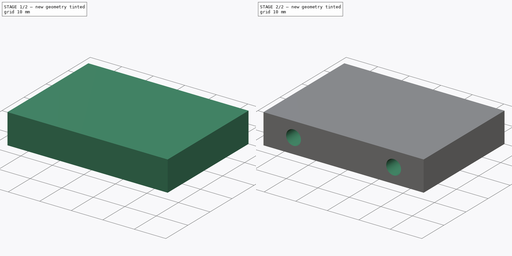
[diagram: build sequence overview — one tinted view per stage of 2, left to right]
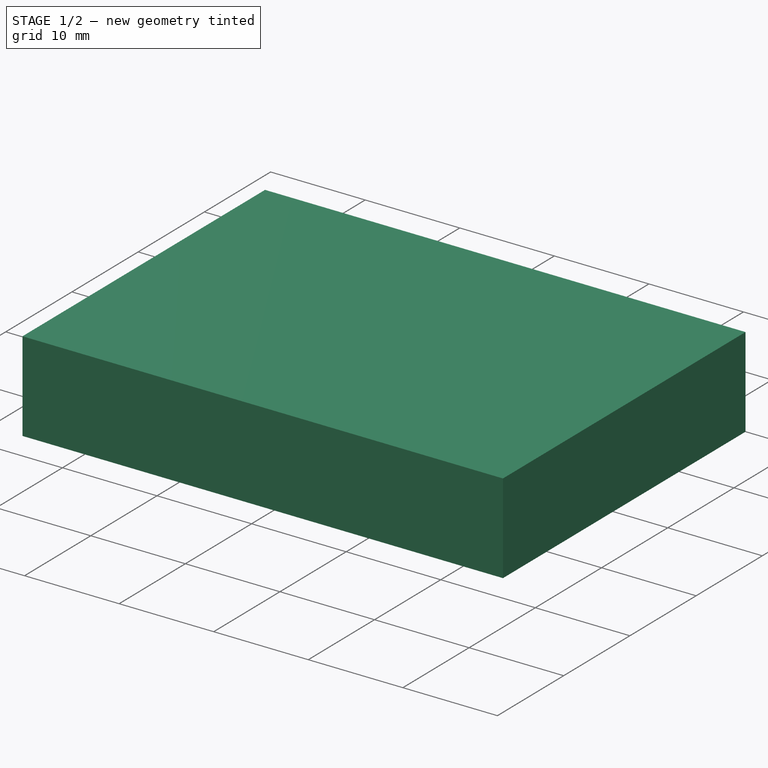
[diagram: stage 1 of 2 — iso view after this stage's code; geometry added in this stage tinted green]
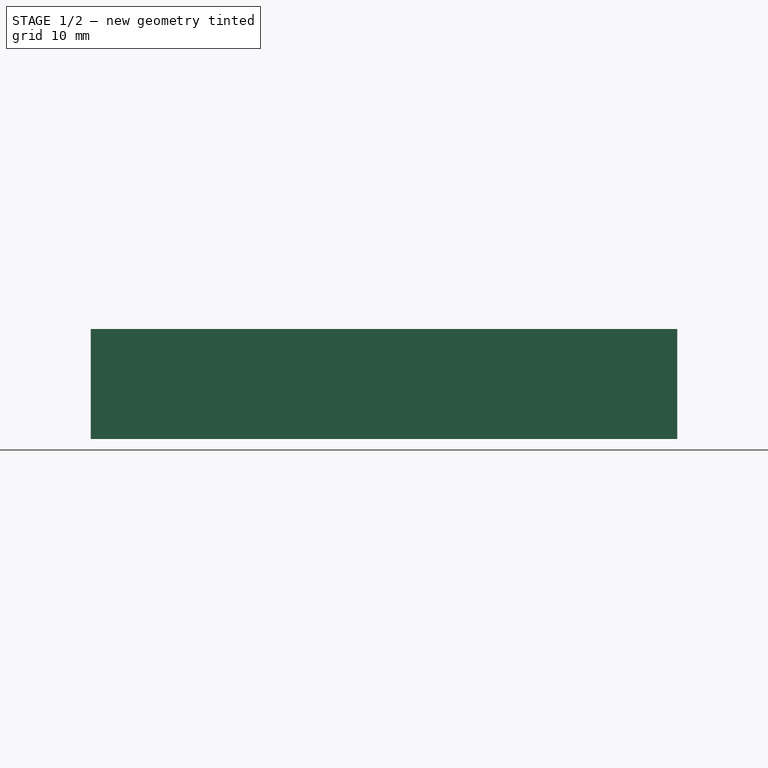
[diagram: stage 1 of 2 — front view after this stage's code; geometry added in this stage tinted green]
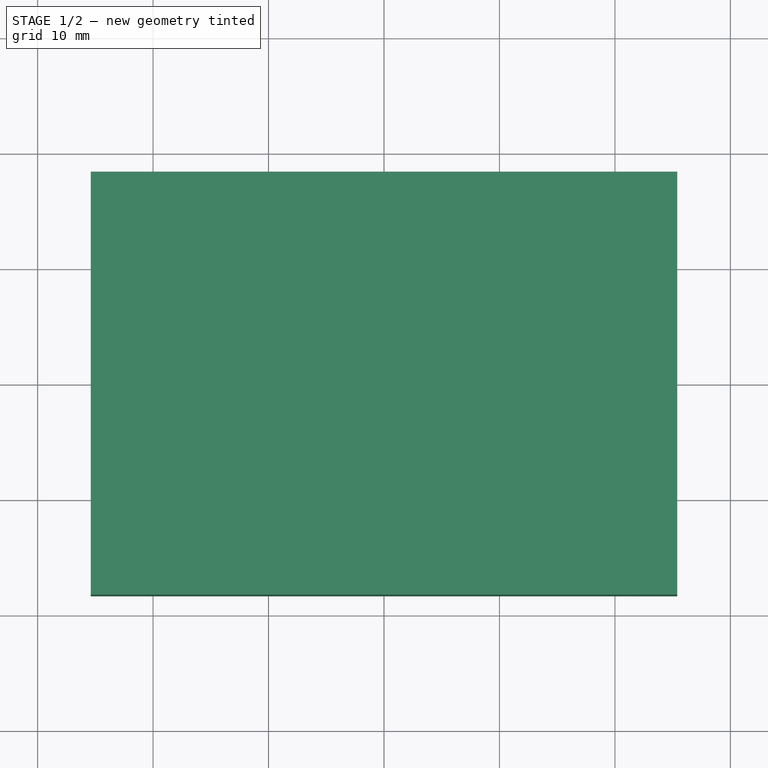
[diagram: stage 1 of 2 — top view after this stage's code; geometry added in this stage tinted green]
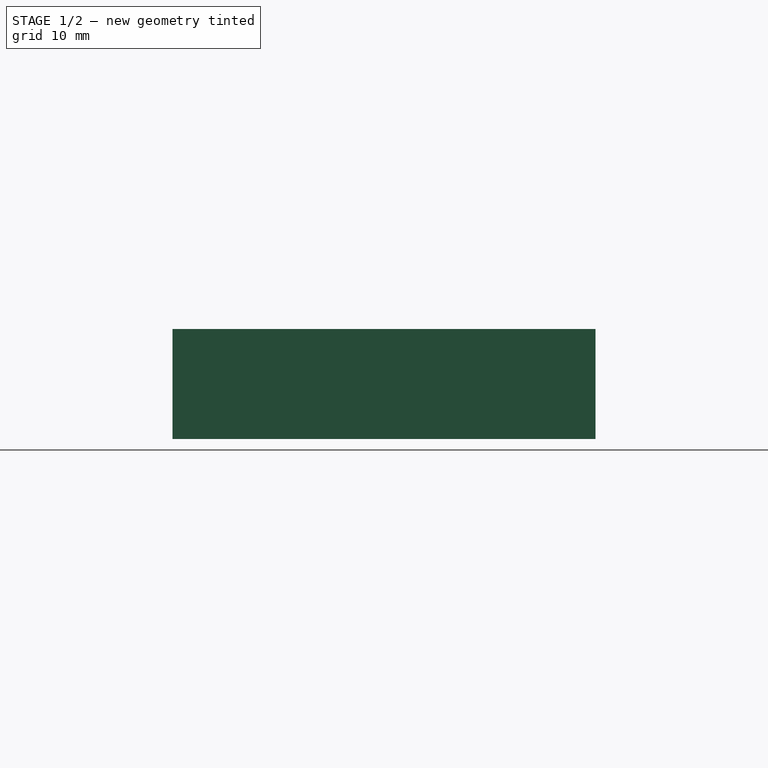
[diagram: stage 1 of 2 — right view after this stage's code; geometry added in this stage tinted green]
FCSTD DOCUMENT  (FreeCAD 0.15R4671 (Git))
Label: UHMW_sides
License: All rights reserved
LicenseURL: http://en.wikipedia.org/wiki/All_rights_reserved
objects: Sketcher::SketchObject×2, PartDesign::Pad×1, PartDesign::Pocket×1
note: 6 computed .brp shape members not serialized (recipe doc carries the construction recipe); baked Part::Feature solids carry a one-line shape summary decoded from their .brp

FEATURE [Sketcher::SketchObject] Sketch
  sketch-geometry (4):
    g0: LineSegment StartX=-25.4 StartY=18.3134 StartZ=0 EndX=25.4 EndY=18.3134 EndZ=0
    g1: LineSegment StartX=25.4 StartY=18.3134 StartZ=0 EndX=25.4 EndY=-18.3134 EndZ=0
    g2: LineSegment StartX=25.4 StartY=-18.3134 StartZ=0 EndX=-25.4 EndY=-18.3134 EndZ=0
    g3: LineSegment StartX=-25.4 StartY=-18.3134 StartZ=0 EndX=-25.4 EndY=18.3134 EndZ=0
  constraints (11):
    c: Coincident(g0,g1)
    c: Coincident(g1,g2)
    c: Coincident(g2,g3)
    c: Coincident(g3,g0)
    c: Horizontal(g0)
    c: Horizontal(g2)
    c: Vertical(g1)
    c: Vertical(g3)
    c: DistanceX(g0) = 50.8
    c: DistanceY(g1) = -36.6268
    c: Symmetric(g0,g1,g-1)
FEATURE [PartDesign::Pad] Pad
  Length = 9.525
  Length2 = 100
  Sketch = -> Sketch
  Type = 0
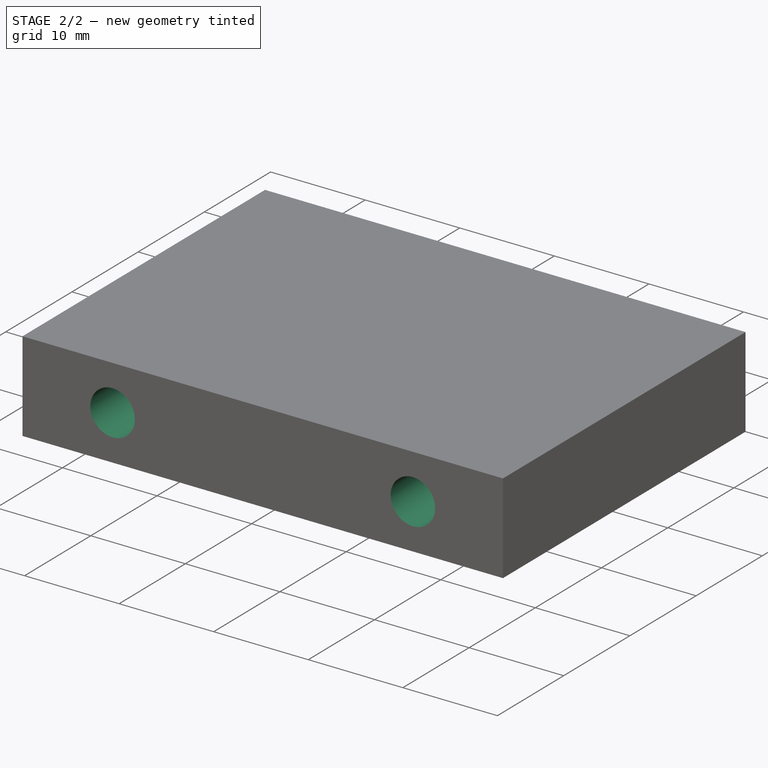
[diagram: stage 2 of 2 — iso view after this stage's code; geometry added in this stage tinted green]
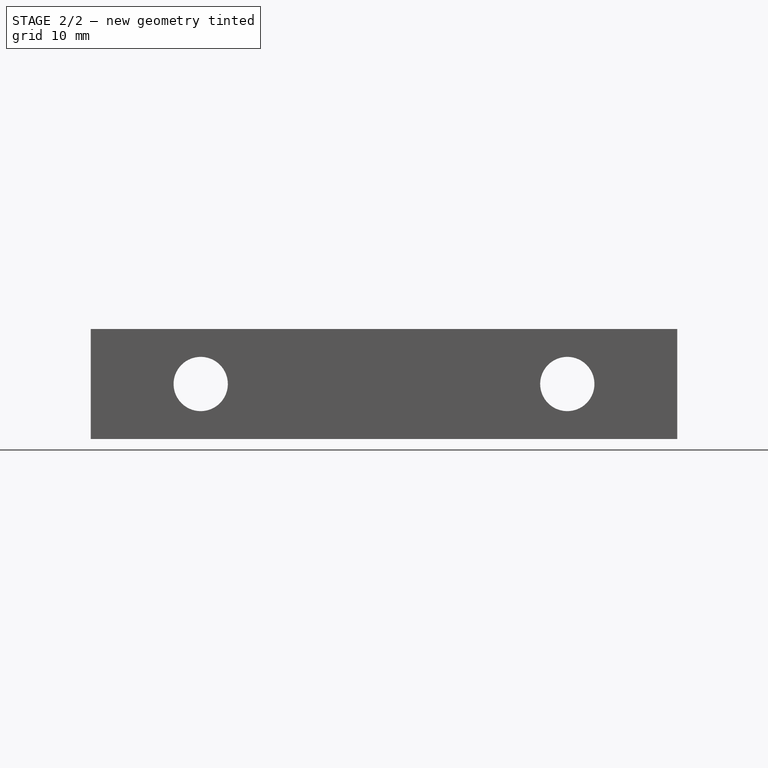
[diagram: stage 2 of 2 — front view after this stage's code; geometry added in this stage tinted green]
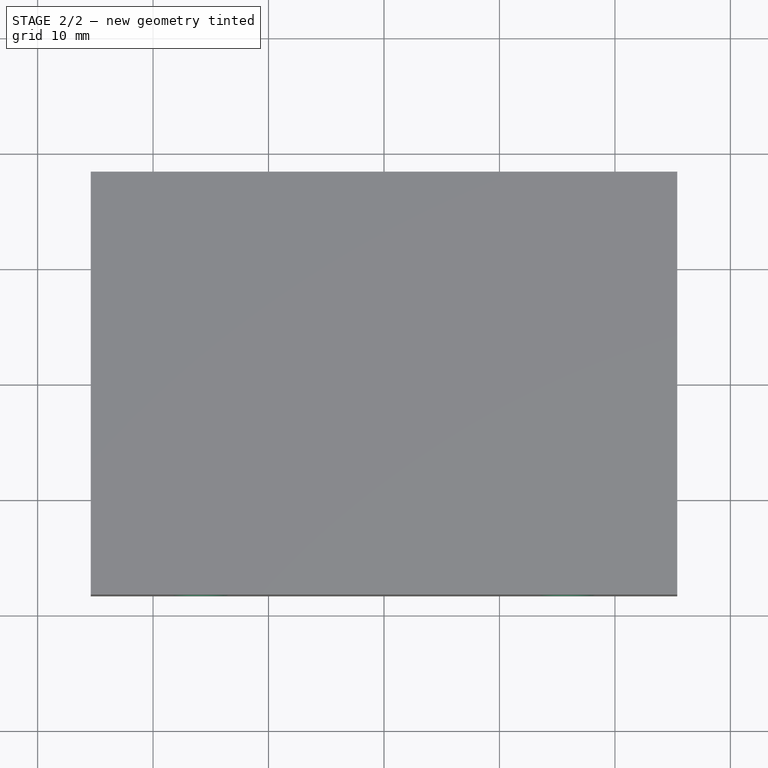
[diagram: stage 2 of 2 — top view after this stage's code; geometry added in this stage tinted green]
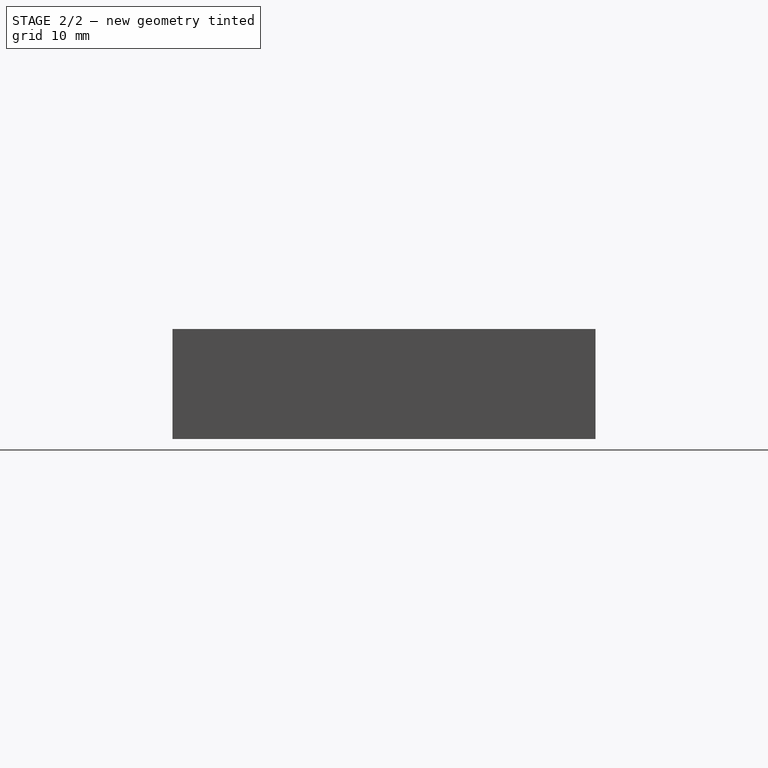
[diagram: stage 2 of 2 — right view after this stage's code; geometry added in this stage tinted green]
FEATURE [Sketcher::SketchObject] Sketch001
  ExternalGeometry = -> [Pad]
  Placement = pos=(0,-18.3134,0) rot=(1,0,0;1.5708rad)
  Support = -> Pad [Face3]
  sketch-geometry (4):
    g0: Circle CenterX=-15.875 CenterY=4.7625 CenterZ=0 NormalX=0 NormalY=0 NormalZ=1 Radius=2.3495
    g1: Circle CenterX=15.875 CenterY=4.7625 CenterZ=0 NormalX=0 NormalY=0 NormalZ=1 Radius=2.3495
    g2: LineSegment [constr] StartX=-15.875 StartY=4.7625 StartZ=0 EndX=15.875 EndY=4.7625 EndZ=0
    g3: GeomPoint [constr] X=7e-12 Y=4.7625 Z=0
  constraints (9):
    c: Radius(g0) = 2.3495
    c: Equal(g0,g1)
    c: Horizontal(g2)
    c: DistanceX(g2) = 31.75
    c: PointOnObject(g3,g2)
    c: Symmetric(g2,g2,g3)
    c: Symmetric(g-3,g-4,g3)
    c: Coincident(g0,g2)
    c: Coincident(g1,g2)
FEATURE [PartDesign::Pocket] Pocket
  Length = 4.99999
  Sketch = -> Sketch001
  Type = 1
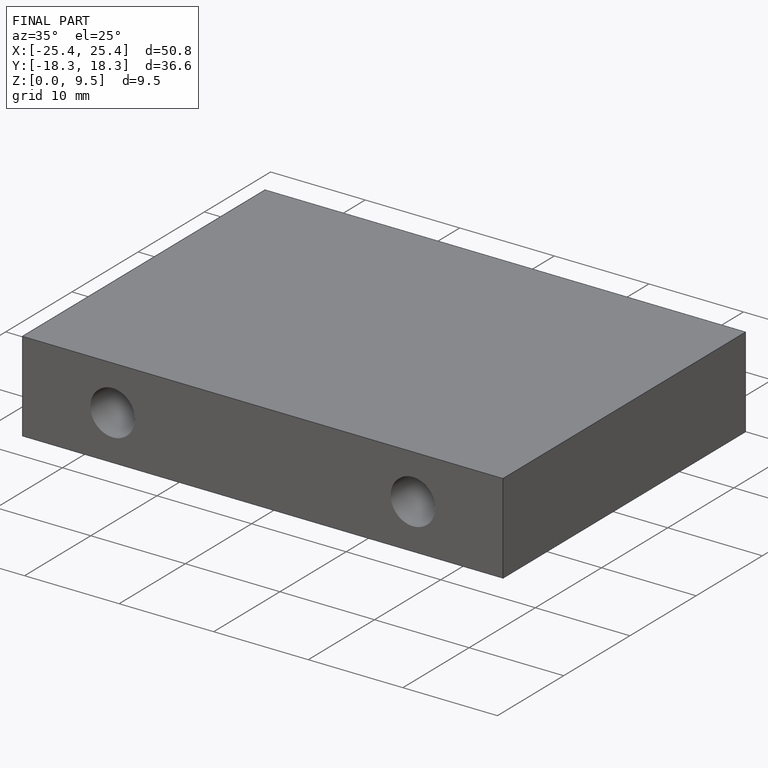
[diagram: finished part — iso view with bounding-box wireframe]
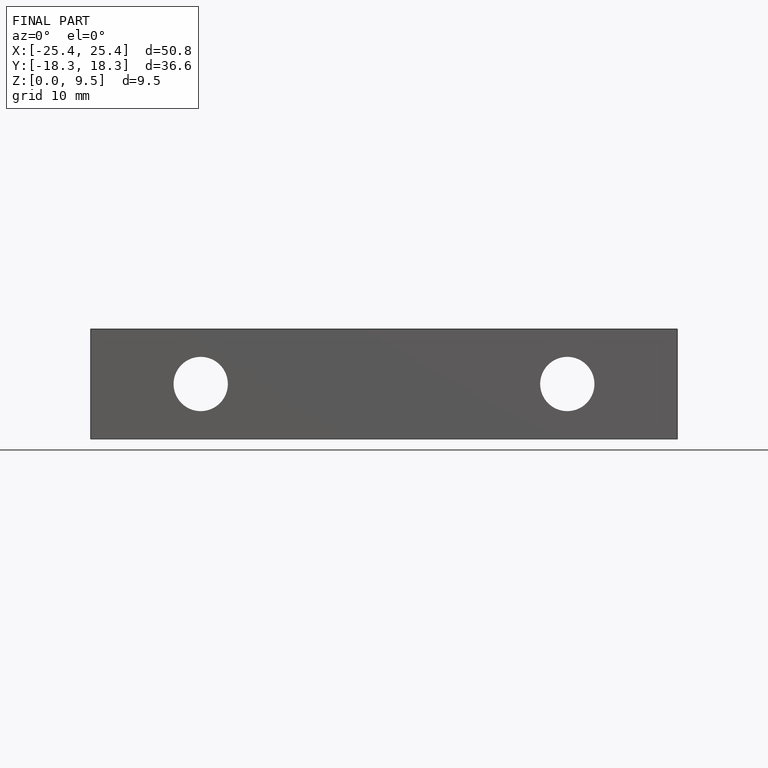
[diagram: finished part — front view with bounding-box wireframe]
